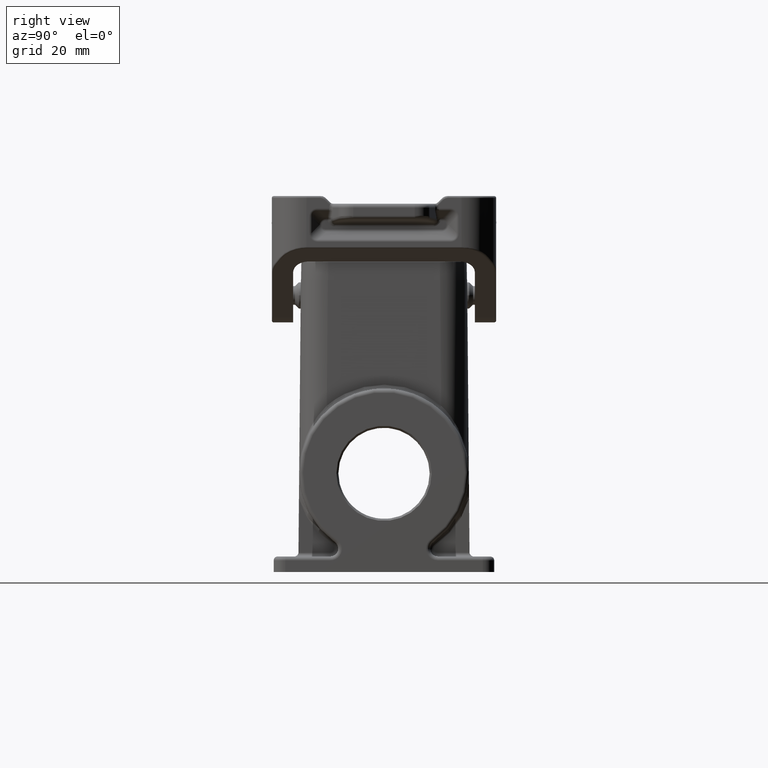
[diagram: clean part render]
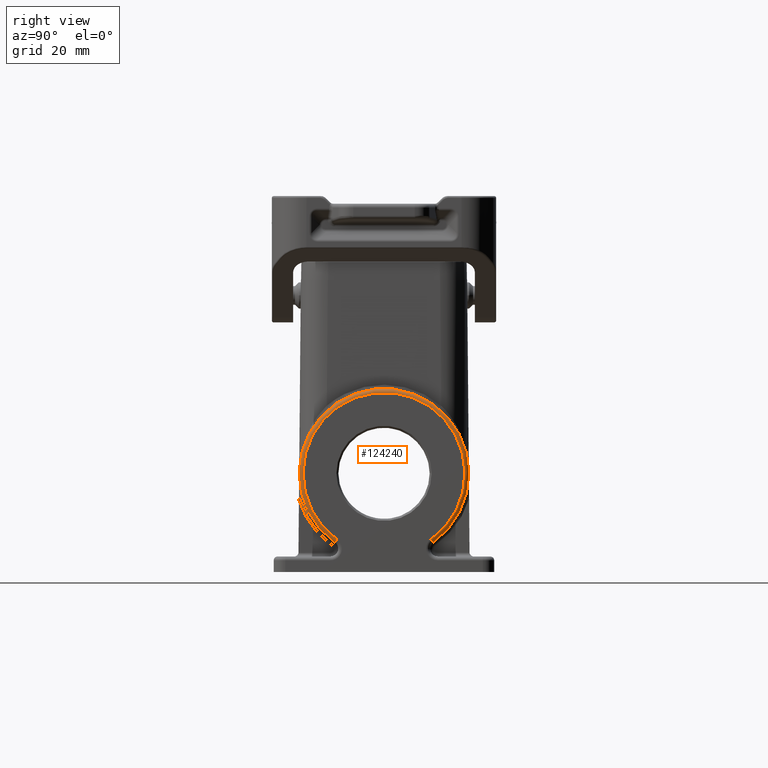
[diagram: same view with one face highlighted and labeled with its STEP entity id]
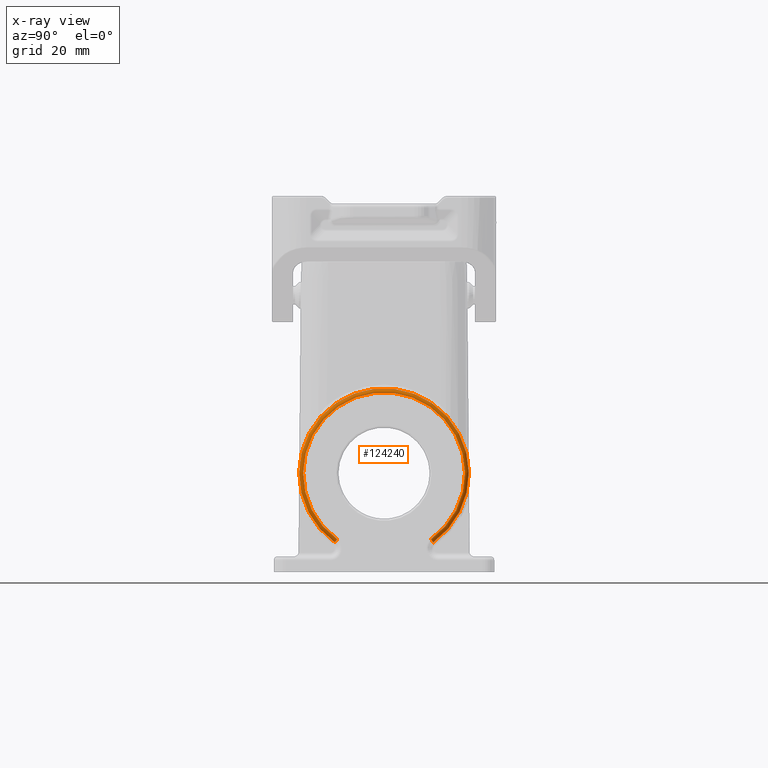
[diagram: x-ray of the same camera — body ghosted, the highlighted face saturated]
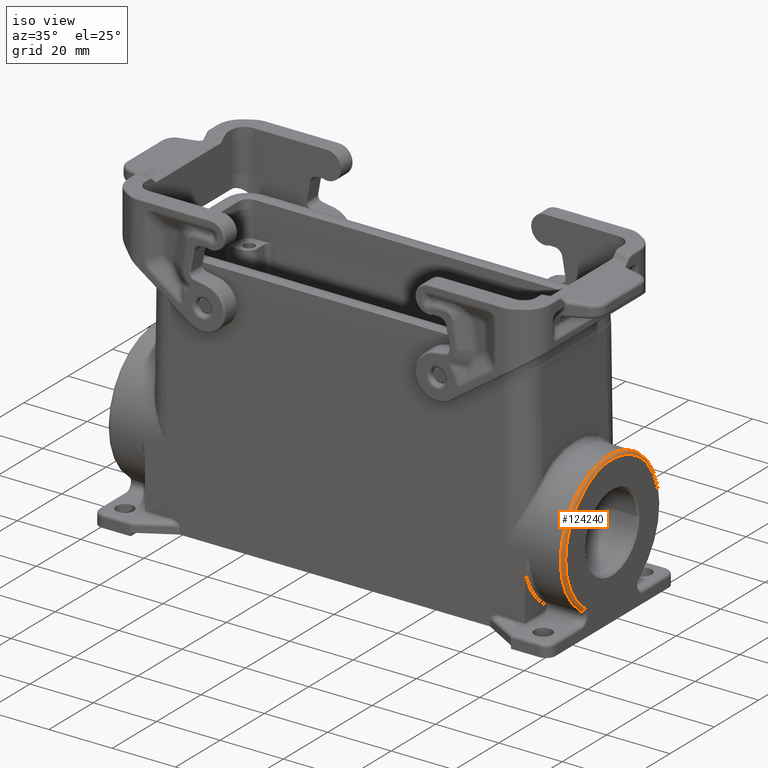
[diagram: same view with one face highlighted and labeled with its STEP entity id]
A machine part, right view. The second image highlights one B-rep face of the part: STEP entity #124240.
The next image is the same camera in x-ray: the body ghosted, the highlighted face saturated — about 0% of this face is hidden behind the body in this view.
A second angle (iso view) of the same face is appended — the face is thin or edge-on in the first view.
In plain terms, the highlighted toroidal blend (fillet) surface has major radius 20.9355 mm and minor (blend) radius 1 mm.
Its self-contained STEP definition (entity closure, byte-faithful):
#42450=CARTESIAN_POINT('',(-10.681422,52.9254337788513,6.62937840313117)
);
#42460=VERTEX_POINT('',#42450);
#58730=CARTESIAN_POINT('',(-10.681422,27.4847262211487,6.62937840313116)
);
#58740=VERTEX_POINT('',#58730);
#121800=CARTESIAN_POINT('',(-11.681422,28.0646240611623,7.44406760469676
));
#121810=VERTEX_POINT('',#121800);
#121840=CARTESIAN_POINT('',(-10.681422,28.0646240611623,7.44406760469676
));
#121850=DIRECTION('',(0.,0.814689201565593,-0.57989784001358));
#121860=DIRECTION('',(1.,0.,0.));
#121870=AXIS2_PLACEMENT_3D('',#121840,#121850,#121860);
#121880=CIRCLE('',#121870,1.);
#121890=EDGE_CURVE('',#58740,#121810,#121880,.T.);
#123930=CARTESIAN_POINT('',(-10.681422,40.20508,24.5));
#123940=DIRECTION('',(-1.,0.,0.));
#123950=DIRECTION('',(0.,1.,-1.69697991484193E-16));
#123960=AXIS2_PLACEMENT_3D('',#123930,#123940,#123950);
#123970=TOROIDAL_SURFACE('',#123960,20.9355081207984,1.);
#123980=CARTESIAN_POINT('',(-10.681422,40.20508,24.5));
#123990=DIRECTION('',(-1.,0.,0.));
#124000=DIRECTION('',(0.,1.,-1.22464679914735E-16));
#124010=AXIS2_PLACEMENT_3D('',#123980,#123990,#124000);
#124020=CIRCLE('',#124010,21.9355081207984);
#124030=EDGE_CURVE('',#58740,#42460,#124020,.T.);
#124040=ORIENTED_EDGE('',*,*,#124030,.T.);
#124050=ORIENTED_EDGE('',*,*,#121890,.F.);
#124060=CARTESIAN_POINT('',(-11.681422,40.20508,24.5));
#124070=DIRECTION('',(-1.,0.,0.));
#124080=DIRECTION('',(0.,1.,-1.22464679914735E-16));
#124090=AXIS2_PLACEMENT_3D('',#124060,#124070,#124080);
#124100=CIRCLE('',#124090,20.9355081207984);
#124110=CARTESIAN_POINT('',(-11.681422,52.3455359388378,7.44406760469676
));
#124120=VERTEX_POINT('',#124110);
#124130=EDGE_CURVE('',#121810,#124120,#124100,.T.);
#124140=ORIENTED_EDGE('',*,*,#124130,.F.);
#124150=CARTESIAN_POINT('',(-10.681422,52.3455359388378,7.44406760469676
));
#124160=DIRECTION('',(0.,0.814689201565593,0.579897840013581));
#124170=DIRECTION('',(1.,0.,0.));
#124180=AXIS2_PLACEMENT_3D('',#124150,#124160,#124170);
#124190=CIRCLE('',#124180,1.);
#124200=EDGE_CURVE('',#42460,#124120,#124190,.T.);
#124210=ORIENTED_EDGE('',*,*,#124200,.T.);
#124220=EDGE_LOOP('',(#124210,#124140,#124050,#124040));
#124230=FACE_OUTER_BOUND('',#124220,.T.);
#124240=ADVANCED_FACE('',(#124230),#123970,.T.);